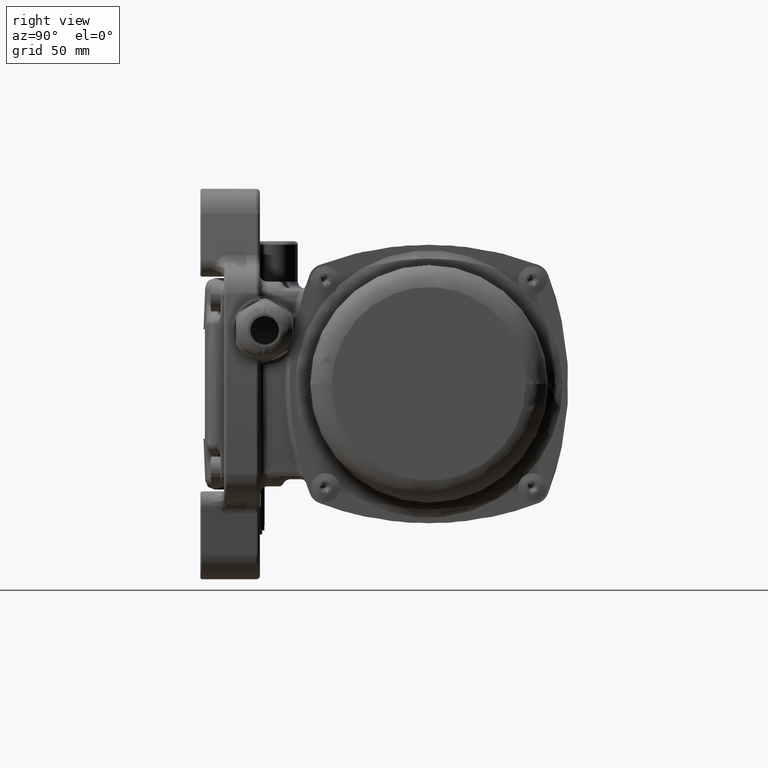
[diagram: clean part render]
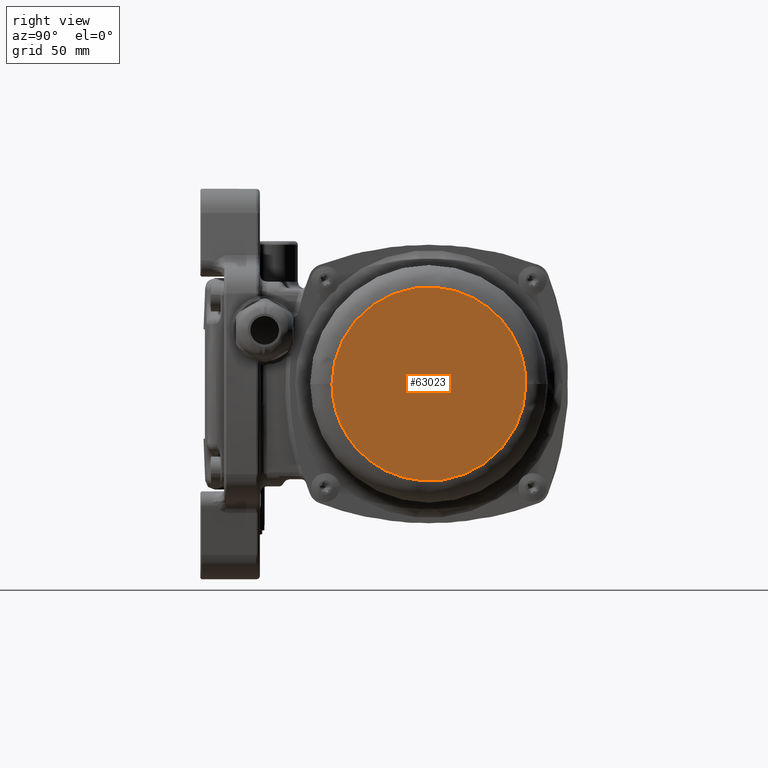
[diagram: same view with one face highlighted and labeled with its STEP entity id]
A machine part, right view. The second image highlights one B-rep face of the part: STEP entity #63023.
In plain terms, the highlighted planar face has unit normal (-1, 0, 0).
Its self-contained STEP definition (entity closure, byte-faithful):
#1429 = EDGE_CURVE ( 'NONE', #8435, #108369, #31700, .T. ) ;
#4056 = CARTESIAN_POINT ( 'NONE',  ( 104.5000000000000900, 40.69999999999969000, -81.40000000000029000 ) ) ;
#8435 = VERTEX_POINT ( 'NONE', #47376 ) ;
#8953 = AXIS2_PLACEMENT_3D ( 'NONE', #151765, #93242, #167849 ) ;
#10968 = EDGE_LOOP ( 'NONE', ( #46787, #56420 ) ) ;
#26000 = CARTESIAN_POINT ( 'NONE',  ( 104.5000000000001000, 40.69999999999969700, -2.847804584295566300E-013 ) ) ;
#31700 =( BOUNDED_CURVE ( )  B_SPLINE_CURVE ( 3, ( #154176, #110653, #68936, #26000 ),
 .UNSPECIFIED., .F., .T. ) 
 B_SPLINE_CURVE_WITH_KNOTS ( ( 4, 4 ),
 ( 0.0000000000000000000, 1.000000000000000000 ),
 .UNSPECIFIED. ) 
 CURVE ( )  GEOMETRIC_REPRESENTATION_ITEM ( )  RATIONAL_B_SPLINE_CURVE ( ( 1.000000000000000000, 0.3333333333333333700, 0.3333333333333333700, 1.000000000000000000 ) ) 
 REPRESENTATION_ITEM ( '' )  );
#46787 = ORIENTED_EDGE ( 'NONE', *, *, #1429, .F. ) ;
#47376 = CARTESIAN_POINT ( 'NONE',  ( 104.5000000000000300, -40.70000000000030800, -2.784411590184276900E-013 ) ) ;
#47595 = CARTESIAN_POINT ( 'NONE',  ( 104.5000000000000400, -40.70000000000031500, -81.40000000000027600 ) ) ;
#56420 = ORIENTED_EDGE ( 'NONE', *, *, #76519, .F. ) ;
#63023 = ADVANCED_FACE ( 'NONE', ( #157188 ), #137500, .F. ) ;
#68936 = CARTESIAN_POINT ( 'NONE',  ( 104.5000000000000900, 40.69999999999971900, 81.39999999999970700 ) ) ;
#74986 = CARTESIAN_POINT ( 'NONE',  ( 104.5000000000001000, 40.69999999999969700, -2.847804584295566300E-013 ) ) ;
#76519 = EDGE_CURVE ( 'NONE', #108369, #8435, #127525, .T. ) ;
#79399 = CARTESIAN_POINT ( 'NONE',  ( 104.5000000000001000, 40.69999999999969700, -2.847804584295566300E-013 ) ) ;
#93242 = DIRECTION ( 'NONE',  ( -1.000000000000000000, 7.886756238159401200E-016, 1.387778780781444000E-017 ) ) ;
#108369 = VERTEX_POINT ( 'NONE', #79399 ) ;
#110653 = CARTESIAN_POINT ( 'NONE',  ( 104.5000000000000400, -40.70000000000031500, 81.39999999999972100 ) ) ;
#127525 =( BOUNDED_CURVE ( )  B_SPLINE_CURVE ( 3, ( #74986, #4056, #47595, #176346 ),
 .UNSPECIFIED., .F., .F. ) 
 B_SPLINE_CURVE_WITH_KNOTS ( ( 4, 4 ),
 ( 0.0000000000000000000, 1.000000000000000000 ),
 .UNSPECIFIED. ) 
 CURVE ( )  GEOMETRIC_REPRESENTATION_ITEM ( )  RATIONAL_B_SPLINE_CURVE ( ( 1.000000000000000000, 0.3333333333333333700, 0.3333333333333333700, 1.000000000000000000 ) ) 
 REPRESENTATION_ITEM ( '' )  );
#137500 = PLANE ( 'NONE',  #8953 ) ;
#151765 = CARTESIAN_POINT ( 'NONE',  ( 104.5000000000001000, 40.69999999999970400, -2.795708109459838000E-013 ) ) ;
#154176 = CARTESIAN_POINT ( 'NONE',  ( 104.5000000000000300, -40.70000000000030800, -2.784411590184276900E-013 ) ) ;
#157188 = FACE_OUTER_BOUND ( 'NONE', #10968, .T. ) ;
#167849 = DIRECTION ( 'NONE',  ( 7.886756238159401200E-016, 1.000000000000000000, -1.387778780781446300E-017 ) ) ;
#176346 = CARTESIAN_POINT ( 'NONE',  ( 104.5000000000000300, -40.70000000000030800, -2.784411590184276900E-013 ) ) ;